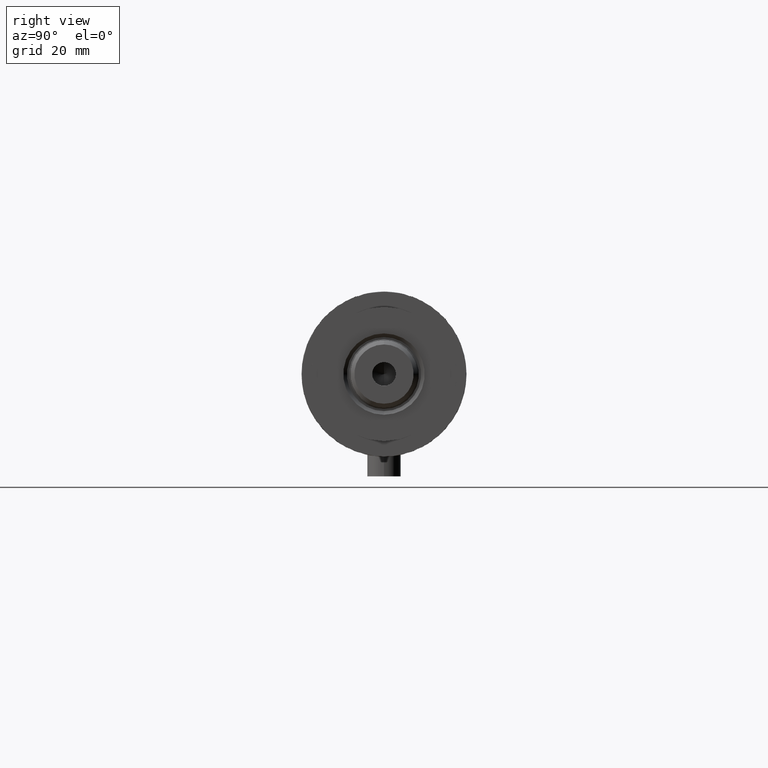
[diagram: clean part render]
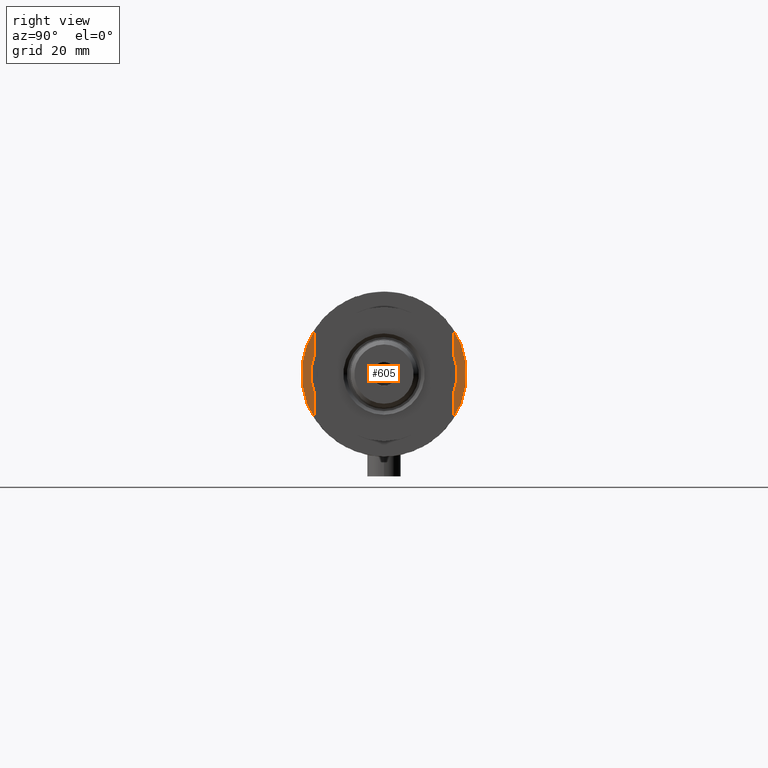
[diagram: same view with one face highlighted and labeled with its STEP entity id]
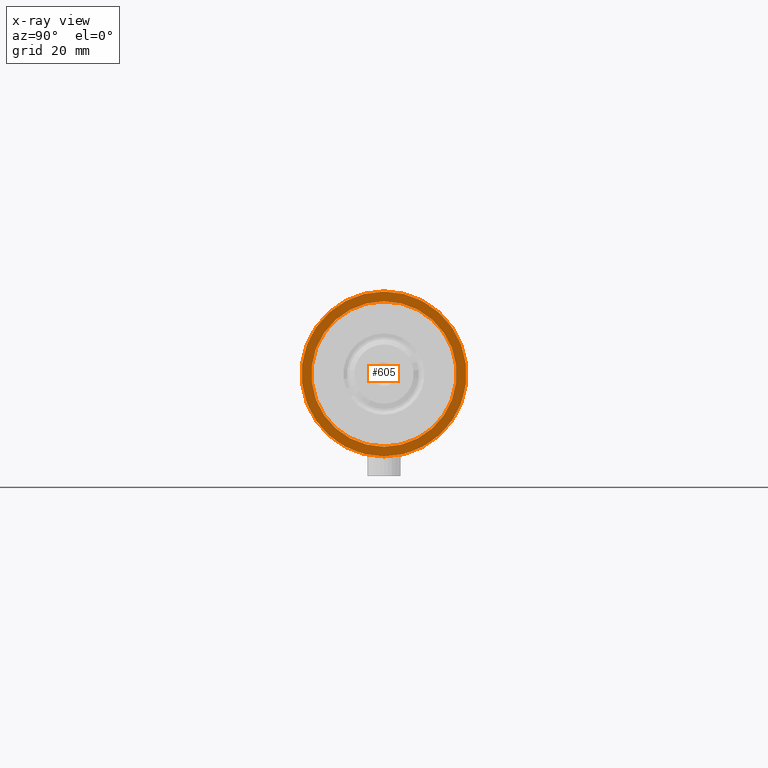
[diagram: x-ray of the same camera — body ghosted, the highlighted face saturated]
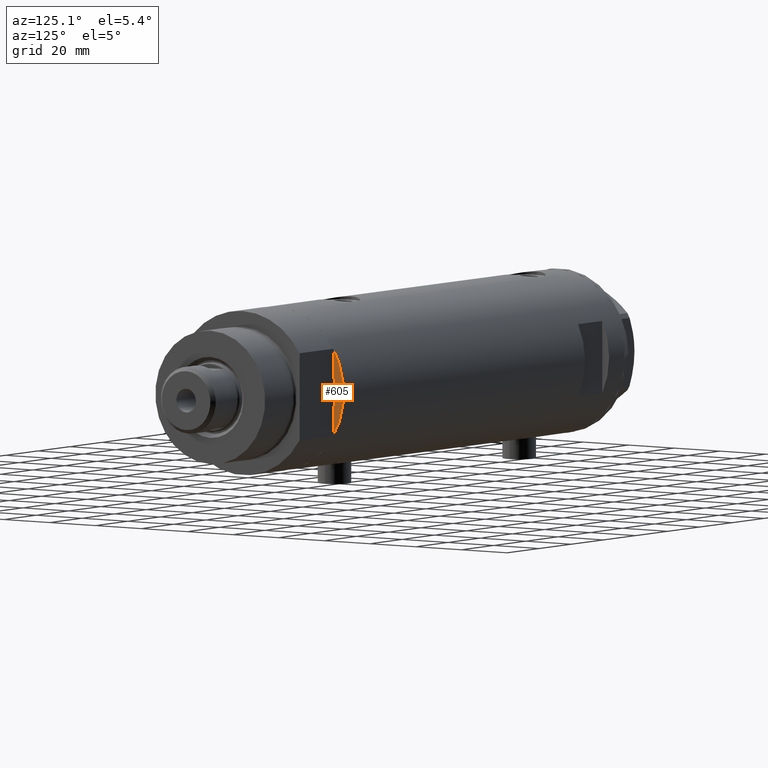
[diagram: same view with one face highlighted and labeled with its STEP entity id]
A machine part, right view. The second image highlights one B-rep face of the part: STEP entity #605.
The next image is the same camera in x-ray: the body ghosted, the highlighted face saturated — about 0% of this face is hidden behind the body in this view.
A second angle (auxiliary view) of the same face is appended — the face is thin or edge-on in the first view.
In plain terms, the highlighted planar face has unit normal (-1, -0, 0).
Its self-contained STEP definition (entity closure, byte-faithful):
#6 = ORIENTED_EDGE ( 'NONE', *, *, #3792, .F. ) ;
#174 = CARTESIAN_POINT ( 'NONE',  ( 0.000000000000000000, 0.000000000000000000, -87.59999999999999432 ) ) ;
#188 = DIRECTION ( 'NONE',  ( -1.000000000000000000, 0.000000000000000000, 0.000000000000000000 ) ) ;
#426 = ORIENTED_EDGE ( 'NONE', *, *, #805, .F. ) ;
#443 = VERTEX_POINT ( 'NONE', #1006 ) ;
#601 = CIRCLE ( 'NONE', #3134, 29.50000000000000355 ) ;
#605 = ADVANCED_FACE ( 'NONE', ( #664, #2689 ), #1321, .F. ) ;
#664 = FACE_BOUND ( 'NONE', #3742, .T. ) ;
#766 = AXIS2_PLACEMENT_3D ( 'NONE', #2148, #2188, #1847 ) ;
#805 = EDGE_CURVE ( 'NONE', #443, #1452, #601, .T. ) ;
#824 = AXIS2_PLACEMENT_3D ( 'NONE', #2306, #954, #2382 ) ;
#867 = CARTESIAN_POINT ( 'NONE',  ( 0.000000000000000000, 0.000000000000000000, -87.59999999999999432 ) ) ;
#911 = AXIS2_PLACEMENT_3D ( 'NONE', #921, #3721, #188 ) ;
#921 = CARTESIAN_POINT ( 'NONE',  ( 0.000000000000000000, 0.000000000000000000, -87.59999999999999432 ) ) ;
#954 = DIRECTION ( 'NONE',  ( 0.000000000000000000, 0.000000000000000000, 1.000000000000000000 ) ) ;
#1006 = CARTESIAN_POINT ( 'NONE',  ( -29.50000000000000355, 3.612708057484692393E-15, -87.59999999999999432 ) ) ;
#1217 = CARTESIAN_POINT ( 'NONE',  ( 26.00000000000000355, 3.184081677783118585E-15, -87.59999999999999432 ) ) ;
#1321 = PLANE ( 'NONE',  #824 ) ;
#1452 = VERTEX_POINT ( 'NONE', #2749 ) ;
#1764 = EDGE_CURVE ( 'NONE', #1452, #443, #1769, .T. ) ;
#1769 = CIRCLE ( 'NONE', #766, 29.50000000000000355 ) ;
#1847 = DIRECTION ( 'NONE',  ( 1.000000000000000000, 0.000000000000000000, 0.000000000000000000 ) ) ;
#2148 = CARTESIAN_POINT ( 'NONE',  ( 0.000000000000000000, 0.000000000000000000, -87.59999999999999432 ) ) ;
#2172 = DIRECTION ( 'NONE',  ( 0.000000000000000000, 0.000000000000000000, 1.000000000000000000 ) ) ;
#2188 = DIRECTION ( 'NONE',  ( 0.000000000000000000, 0.000000000000000000, 1.000000000000000000 ) ) ;
#2242 = DIRECTION ( 'NONE',  ( 0.000000000000000000, 0.000000000000000000, -1.000000000000000000 ) ) ;
#2284 = EDGE_LOOP ( 'NONE', ( #3904, #426 ) ) ;
#2306 = CARTESIAN_POINT ( 'NONE',  ( 0.000000000000000000, 0.000000000000000000, -87.59999999999999432 ) ) ;
#2382 = DIRECTION ( 'NONE',  ( 1.000000000000000000, 0.000000000000000000, -0.000000000000000000 ) ) ;
#2630 = AXIS2_PLACEMENT_3D ( 'NONE', #867, #2242, #3626 ) ;
#2689 = FACE_OUTER_BOUND ( 'NONE', #2284, .T. ) ;
#2749 = CARTESIAN_POINT ( 'NONE',  ( 29.50000000000000355, 0.000000000000000000, -87.59999999999999432 ) ) ;
#2789 = CIRCLE ( 'NONE', #911, 26.00000000000000355 ) ;
#3134 = AXIS2_PLACEMENT_3D ( 'NONE', #174, #2172, #3238 ) ;
#3143 = CIRCLE ( 'NONE', #2630, 26.00000000000000355 ) ;
#3238 = DIRECTION ( 'NONE',  ( 1.000000000000000000, 0.000000000000000000, 0.000000000000000000 ) ) ;
#3302 = VERTEX_POINT ( 'NONE', #1217 ) ;
#3467 = ORIENTED_EDGE ( 'NONE', *, *, #3946, .F. ) ;
#3581 = CARTESIAN_POINT ( 'NONE',  ( -26.00000000000000355, 0.000000000000000000, -87.59999999999999432 ) ) ;
#3626 = DIRECTION ( 'NONE',  ( -1.000000000000000000, 0.000000000000000000, 0.000000000000000000 ) ) ;
#3721 = DIRECTION ( 'NONE',  ( 0.000000000000000000, 0.000000000000000000, -1.000000000000000000 ) ) ;
#3742 = EDGE_LOOP ( 'NONE', ( #3467, #6 ) ) ;
#3792 = EDGE_CURVE ( 'NONE', #3302, #4262, #3143, .T. ) ;
#3904 = ORIENTED_EDGE ( 'NONE', *, *, #1764, .F. ) ;
#3946 = EDGE_CURVE ( 'NONE', #4262, #3302, #2789, .T. ) ;
#4262 = VERTEX_POINT ( 'NONE', #3581 ) ;